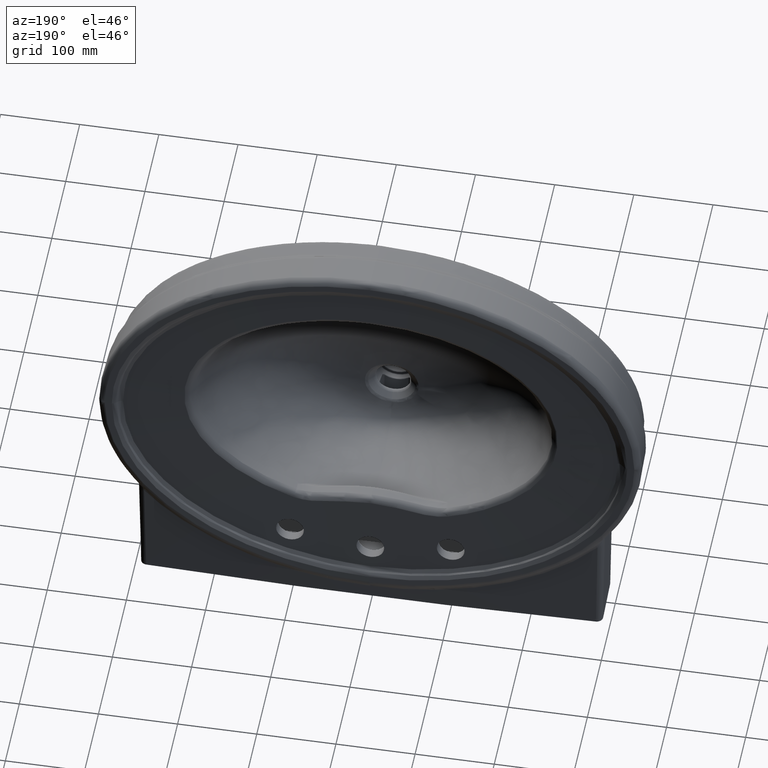
[diagram: clean part render]
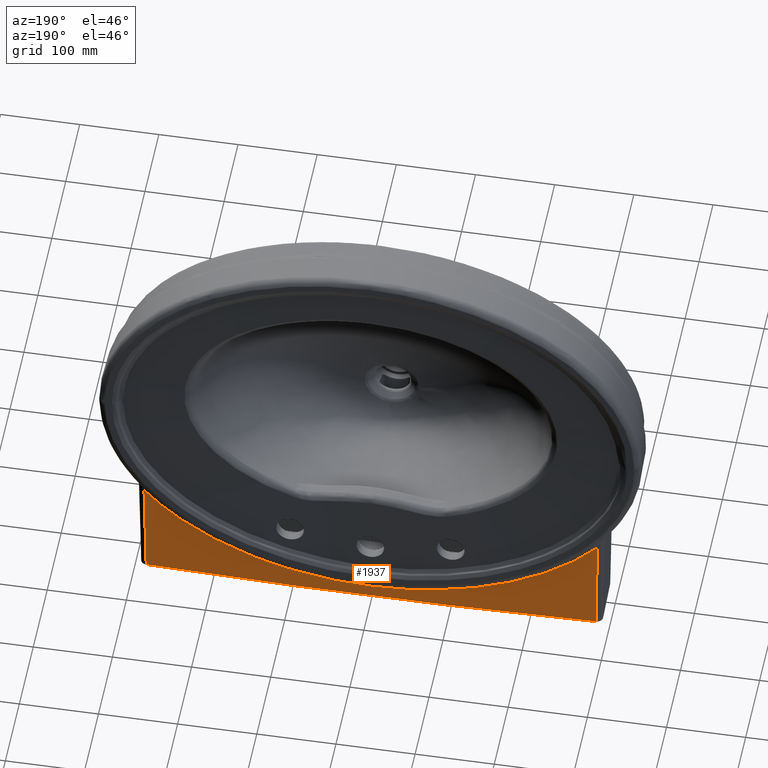
[diagram: same view with one face highlighted and labeled with its STEP entity id]
A machine part, auxiliary view. The second image highlights one B-rep face of the part: STEP entity #1937.
In plain terms, the highlighted conical surface has half-angle 1 deg.
Its self-contained STEP definition (entity closure, byte-faithful):
#112=CONICAL_SURFACE('',#7422,9003.678936487,1.);
#1361=B_SPLINE_CURVE_WITH_KNOTS('',3,(#30782,#30783,#30784,#30785,#30786,
#30787),.UNSPECIFIED.,.F.,.F.,(4,1,1,4),(0.,0.3333333333333,0.6666666666667,
1.),.UNSPECIFIED.);
#1383=B_SPLINE_CURVE_WITH_KNOTS('',3,(#32230,#32231,#32232,#32233,#32234,
#32235,#32236,#32237,#32238,#32239,#32240,#32241,#32242,#32243,#32244,#32245,
#32246,#32247,#32248,#32249,#32250,#32251,#32252,#32253,#32254,#32255,#32256,
#32257,#32258,#32259,#32260,#32261,#32262,#32263,#32264,#32265,#32266,#32267,
#32268,#32269,#32270,#32271,#32272,#32273,#32274,#32275,#32276,#32277,#32278,
#32279,#32280,#32281,#32282,#32283,#32284,#32285,#32286,#32287,#32288,#32289,
#32290,#32291,#32292,#32293,#32294,#32295,#32296,#32297,#32298,#32299,#32300,
#32301,#32302,#32303,#32304,#32305,#32306,#32307,#32308,#32309,#32310),
 .UNSPECIFIED.,.F.,.F.,(4,1,1,1,2,2,1,1,1,2,2,1,1,2,2,1,1,2,2,1,2,2,2,2,
2,2,2,2,2,2,2,2,2,2,1,2,2,1,2,2,2,2,2,2,2,2,4),(0.,0.0312499999999998,0.0468749999999998,
0.0546874999999997,0.0585937499999997,0.0624999999999997,0.0937499999999994,
0.109374999999999,0.117187499999999,0.121093749999999,0.124999999999999,
0.140624999999999,0.148437499999999,0.152343749999998,0.156249999999998,
0.171874999999998,0.179687499999998,0.183593749999998,0.187499999999998,
0.203124999999998,0.210937499999998,0.218749999999998,0.249999999999999,
0.312499999999999,0.343749999999999,0.374999999999999,0.406249999999999,
0.437499999999999,0.468749999999999,0.499999999999999,0.531249999999999,
0.562499999999999,0.593749999999999,0.624999999999999,0.656249999999999,
0.671874999999999,0.687499999999999,0.718749999999999,0.734374999999999,
0.749999999999999,0.78125,0.8125,0.84375,0.875,0.90625,0.9375,1.),
 .UNSPECIFIED.);
#1395=B_SPLINE_CURVE_WITH_KNOTS('',3,(#33192,#33193,#33194,#33195,#33196,
#33197,#33198,#33199,#33200,#33201,#33202,#33203,#33204,#33205,#33206,#33207,
#33208,#33209,#33210,#33211,#33212,#33213,#33214,#33215,#33216),
 .UNSPECIFIED.,.F.,.F.,(4,1,1,1,1,1,1,1,1,1,1,1,1,1,1,1,1,1,1,1,1,1,4),
(0.,0.04545454545455,0.09090909090909,0.1363636363636,0.1818181818182,0.2272727272727,
0.2727272727273,0.3181818181818,0.3636363636364,0.4090909090909,0.4545454545455,
0.5,0.5454545454545,0.5909090909091,0.6363636363636,0.6818181818182,0.7272727272727,
0.7727272727273,0.8181818181818,0.8636363636364,0.9090909090909,0.9545454545455,
1.),.UNSPECIFIED.);
#1396=B_SPLINE_CURVE_WITH_KNOTS('',3,(#33362,#33363,#33364,#33365,#33366,
#33367),.UNSPECIFIED.,.F.,.F.,(4,1,1,4),(0.,0.3333333333333,0.6666666666667,
1.),.UNSPECIFIED.);
#1937=ADVANCED_FACE('',(#2402),#112,.T.);
#2402=FACE_OUTER_BOUND('',#2883,.T.);
#2883=EDGE_LOOP('',(#4672,#4673,#4674,#4675,#4676));
#4672=ORIENTED_EDGE('',*,*,#6764,.T.);
#4673=ORIENTED_EDGE('',*,*,#6784,.T.);
#4674=ORIENTED_EDGE('',*,*,#6533,.T.);
#4675=ORIENTED_EDGE('',*,*,#6732,.T.);
#4676=ORIENTED_EDGE('',*,*,#6782,.T.);
#5675=VERTEX_POINT('',#22751);
#5676=VERTEX_POINT('',#22753);
#5782=VERTEX_POINT('',#30781);
#5801=VERTEX_POINT('',#32184);
#5802=VERTEX_POINT('',#32311);
#6533=EDGE_CURVE('',#5676,#5675,#7172,.T.);
#6732=EDGE_CURVE('',#5675,#5782,#1361,.T.);
#6764=EDGE_CURVE('',#5802,#5801,#1383,.T.);
#6782=EDGE_CURVE('',#5782,#5802,#1395,.T.);
#6784=EDGE_CURVE('',#5801,#5676,#1396,.T.);
#7172=CIRCLE('',#7379,9002.499999999);
#7379=AXIS2_PLACEMENT_3D('',#22752,#7875,#7876);
#7422=AXIS2_PLACEMENT_3D('',#33368,#7978,#7979);
#7875=DIRECTION('',(0.,0.,1.));
#7876=DIRECTION('',(0.0315480222375593,0.999502237262578,0.));
#7978=DIRECTION('',(0.,0.,1.));
#7979=DIRECTION('',(0.,-1.,3.07672800462499E-018));
#22751=CARTESIAN_POINT('',(-284.011070193597,148.205750609383,-225.));
#22752=CARTESIAN_POINT('',(0.,-8849.813140346,-225.));
#22753=CARTESIAN_POINT('',(284.011070193597,148.205750609383,-225.));
#30781=CARTESIAN_POINT('',(-286.4307796233,150.4881171025,-89.91753538059));
#30782=CARTESIAN_POINT('',(-284.0110701936,148.2057506094,-225.));
#30783=CARTESIAN_POINT('',(-284.2799479448,148.4593973235,-209.9898570671));
#30784=CARTESIAN_POINT('',(-284.8176879542,148.9666571756,-179.9702238998));
#30785=CARTESIAN_POINT('',(-285.6242796879,149.7274450549,-134.9427495264));
#30786=CARTESIAN_POINT('',(-286.1619389287,150.2345714545,-104.9257156345));
#30787=CARTESIAN_POINT('',(-286.4307796233,150.4881171025,-89.91753538059));
#32184=CARTESIAN_POINT('',(286.4307777769,150.4881171386,-89.91753667617));
#32230=CARTESIAN_POINT('',(1.64568771235064E-007,152.991527517695,-207.545589773164));
#32231=CARTESIAN_POINT('',(2.31019978619397,152.991532934379,-207.54527944917));
#32232=CARTESIAN_POINT('',(5.77266441608813,152.990674093708,-207.518066812772));
#32233=CARTESIAN_POINT('',(9.80724567559532,152.988166369759,-207.43951122376));
#32234=CARTESIAN_POINT('',(11.8232961164287,152.986537500564,-207.388531550951));
#32235=CARTESIAN_POINT('',(12.6870519806125,152.985759208085,-207.364175574397));
#32236=CARTESIAN_POINT('',(13.2628301672724,152.98522253994,-207.347381024393));
#32237=CARTESIAN_POINT('',(13.4975333624365,152.984998145413,-207.340358849125));
#32238=CARTESIAN_POINT('',(16.566411028924,152.981947371707,-207.244884840463));
#32239=CARTESIAN_POINT('',(20.6653530676527,152.976678715541,-207.079217472747));
#32240=CARTESIAN_POINT('',(25.4598863091773,152.968396299825,-206.818793670451));
#32241=CARTESIAN_POINT('',(27.8602614974928,152.963716919084,-206.671795467647));
#32242=CARTESIAN_POINT('',(28.8896598445333,152.961595690644,-206.605199173233));
#32243=CARTESIAN_POINT('',(29.5760734368658,152.960155758771,-206.560002295925));
#32244=CARTESIAN_POINT('',(29.8678529045131,152.959534764597,-206.540513723179));
#32245=CARTESIAN_POINT('',(31.8421337357049,152.955246602242,-206.40597709264));
#32246=CARTESIAN_POINT('',(34.1980378124753,152.949723600137,-206.23297514798));
#32247=CARTESIAN_POINT('',(36.9234350325874,152.942656339539,-206.01091306685));
#32248=CARTESIAN_POINT('',(38.0865000937919,152.939497706862,-205.911409358003));
#32249=CARTESIAN_POINT('',(38.8607740649501,152.937363533161,-205.844110386437));
#32250=CARTESIAN_POINT('',(39.205097219562,152.936402148096,-205.813768660073));
#32251=CARTESIAN_POINT('',(41.3465807830352,152.930326132424,-205.62175869155));
#32252=CARTESIAN_POINT('',(43.9281344754749,152.922541817783,-205.374603783963));
#32253=CARTESIAN_POINT('',(46.9605506248836,152.912561744964,-205.0569562374));
#32254=CARTESIAN_POINT('',(48.2645725841759,152.908088232598,-204.914542970078));
#32255=CARTESIAN_POINT('',(49.1349016766211,152.905061833897,-204.818205546416));
#32256=CARTESIAN_POINT('',(49.5308131254726,152.903668530102,-204.773855714215));
#32257=CARTESIAN_POINT('',(51.9102597402061,152.895171559982,-204.50345341606));
#32258=CARTESIAN_POINT('',(54.7467171784356,152.884455200396,-204.162888505403));
#32259=CARTESIAN_POINT('',(57.5548570210788,152.873012369921,-203.79820036544));
#32260=CARTESIAN_POINT('',(59.4206574718767,152.865228250938,-203.549714221175));
#32261=CARTESIAN_POINT('',(60.3118826199734,152.861426591986,-203.428179764784));
#32262=CARTESIAN_POINT('',(65.137563355053,152.840362222443,-202.753215943231));
#32263=CARTESIAN_POINT('',(69.033442721647,152.821797356281,-202.154136113339));
#32264=CARTESIAN_POINT('',(80.6778882323526,152.761516709062,-200.204549904933));
#32265=CARTESIAN_POINT('',(88.3211593940764,152.715705889575,-198.706686157443));
#32266=CARTESIAN_POINT('',(99.5831937327312,152.639860092884,-196.184019332649));
#32267=CARTESIAN_POINT('',(103.315034152933,152.613307762589,-195.294911839062));
#32268=CARTESIAN_POINT('',(110.734374625201,152.557827677349,-193.420259747912));
#32269=CARTESIAN_POINT('',(114.45903907321,152.528595396854,-192.424233372744));
#32270=CARTESIAN_POINT('',(121.715371937458,152.469136910872,-190.377670628847));
#32271=CARTESIAN_POINT('',(125.319423094169,152.4383411404,-189.307959304029));
#32272=CARTESIAN_POINT('',(132.479296980868,152.374790260484,-187.075676748654));
#32273=CARTESIAN_POINT('',(136.081064010806,152.341597407309,-185.897377523071));
#32274=CARTESIAN_POINT('',(143.052594793133,152.275174719696,-183.510831146272));
#32275=CARTESIAN_POINT('',(146.51198976813,152.241121116134,-182.273248868774));
#32276=CARTESIAN_POINT('',(153.378041430884,152.171511732813,-179.709466135584));
#32277=CARTESIAN_POINT('',(156.833457480348,152.135433535516,-178.363496609412));
#32278=CARTESIAN_POINT('',(163.496516598027,152.064044190418,-175.662015660786));
#32279=CARTESIAN_POINT('',(166.798117833953,152.027754239554,-174.269938280235));
#32280=CARTESIAN_POINT('',(173.341466595054,151.954181299992,-171.403109706657));
#32281=CARTESIAN_POINT('',(176.632752211229,151.916317108138,-169.90497486914));
#32282=CARTESIAN_POINT('',(182.957320494222,151.842114430161,-166.919565959588));
#32283=CARTESIAN_POINT('',(186.088050636894,151.804656073018,-165.38796654849));
#32284=CARTESIAN_POINT('',(192.286406126862,151.729222803284,-162.246977813652));
#32285=CARTESIAN_POINT('',(195.403773525592,151.6906230757,-160.610583540959));
#32286=CARTESIAN_POINT('',(201.376438677098,151.615599819037,-157.36802487874));
#32287=CARTESIAN_POINT('',(205.804991153568,151.559163722382,-154.882406978895));
#32288=CARTESIAN_POINT('',(210.157127855791,151.502700135896,-152.316240724281));
#32289=CARTESIAN_POINT('',(213.041571477179,151.465076149524,-150.587563586812));
#32290=CARTESIAN_POINT('',(214.499614377129,151.445953013362,-149.69922613688));
#32291=CARTESIAN_POINT('',(218.702403384787,151.390570005666,-147.097658719497));
#32292=CARTESIAN_POINT('',(222.85251670442,151.335357326015,-144.446320380574));
#32293=CARTESIAN_POINT('',(226.923620355126,151.280618635039,-141.720325659339));
#32294=CARTESIAN_POINT('',(229.620132188714,151.244255204222,-139.886405538003));
#32295=CARTESIAN_POINT('',(230.983075066855,151.22581989588,-138.944688060554));
#32296=CARTESIAN_POINT('',(234.904774886904,151.172651659851,-136.193423746582));
#32297=CARTESIAN_POINT('',(237.482620779265,151.1375384579,-134.329114996126));
#32298=CARTESIAN_POINT('',(242.565074631911,151.0681653839,-130.540232412932));
#32299=CARTESIAN_POINT('',(245.113440283657,151.03330727184,-128.581001465332));
#32300=CARTESIAN_POINT('',(249.961906288415,150.967020723778,-124.740902947294));
#32301=CARTESIAN_POINT('',(252.349027080819,150.934402282143,-122.793173308752));
#32302=CARTESIAN_POINT('',(257.049047458807,150.870392207765,-118.84235327262));
#32303=CARTESIAN_POINT('',(259.401808863615,150.838462979256,-116.803692723299));
#32304=CARTESIAN_POINT('',(263.873666380773,150.778153347442,-112.813291472537));
#32305=CARTESIAN_POINT('',(266.071858533376,150.74870005129,-110.793040284376));
#32306=CARTESIAN_POINT('',(270.392772588627,150.691362376632,-106.702436782495));
#32307=CARTESIAN_POINT('',(272.552042573179,150.663004363342,-104.595353827537));
#32308=CARTESIAN_POINT('',(278.69736300907,150.583365779709,-98.4193371217554));
#32309=CARTESIAN_POINT('',(282.640791259988,150.533717083217,-94.2129554830586));
#32310=CARTESIAN_POINT('',(286.43077777693,150.488117139536,-89.9175366761863));
#32311=CARTESIAN_POINT('',(1.645687259551E-007,152.9915275656,-207.545589774));
#33192=CARTESIAN_POINT('',(-286.4307796233,150.4881171025,-89.91753538059));
#33193=CARTESIAN_POINT('',(-283.8556210978,150.5191003486,-92.83613620194));
#33194=CARTESIAN_POINT('',(-278.5331138844,150.5851752673,-98.62558998324));
#33195=CARTESIAN_POINT('',(-270.0152216904,150.6958634199,-107.1606633421));
#33196=CARTESIAN_POINT('',(-260.9651781068,150.8170337636,-115.5189425399));
#33197=CARTESIAN_POINT('',(-251.3807684773,150.9475292574,-123.6783571397));
#33198=CARTESIAN_POINT('',(-241.2597007595,151.0860906016,-131.6168285173));
#33199=CARTESIAN_POINT('',(-230.5955487205,151.231402678,-139.315331367));
#33200=CARTESIAN_POINT('',(-219.3946779431,151.3818665683,-146.745614481));
#33201=CARTESIAN_POINT('',(-207.6683445946,151.5357468376,-153.8776367143));
#33202=CARTESIAN_POINT('',(-195.4160099849,151.6913795009,-160.6895851476));
#33203=CARTESIAN_POINT('',(-182.6588533871,151.8467538293,-167.1484048939));
#33204=CARTESIAN_POINT('',(-169.4166961447,151.9998825331,-173.2241676807));
#33205=CARTESIAN_POINT('',(-155.6924787471,152.1489283825,-178.89612304));
#33206=CARTESIAN_POINT('',(-141.52659315,152.2916516405,-184.1291218091));
#33207=CARTESIAN_POINT('',(-126.9470205742,152.4260547226,-188.8965188709));
#33208=CARTESIAN_POINT('',(-111.9658338399,152.5503093215,-193.1783585231));
#33209=CARTESIAN_POINT('',(-96.64584916144,152.6622830215,-196.9424802828));
#33210=CARTESIAN_POINT('',(-81.02696799905,152.760282829,-200.1673911234));
#33211=CARTESIAN_POINT('',(-65.1381815172,152.84281464,-202.8365307268));
#33212=CARTESIAN_POINT('',(-49.05061771076,152.9084138965,-204.929161082));
#33213=CARTESIAN_POINT('',(-32.80911060475,152.9560806925,-206.4335795292));
#33214=CARTESIAN_POINT('',(-16.44433608744,152.9850483183,-207.341570708));
#33215=CARTESIAN_POINT('',(-5.490858815502,152.9915431981,-207.5449638968));
#33216=CARTESIAN_POINT('',(1.645687259551E-007,152.9915275656,-207.545589774));
#33362=CARTESIAN_POINT('',(286.4307777769,150.4881171386,-89.91753667617));
#33363=CARTESIAN_POINT('',(286.1619370853,150.2345714933,-104.9257167615));
#33364=CARTESIAN_POINT('',(285.6242804997,149.727444991,-134.942751706));
#33365=CARTESIAN_POINT('',(284.8176876988,148.9666571717,-179.9702245874));
#33366=CARTESIAN_POINT('',(284.2799479398,148.4593973188,-209.9898573451));
#33367=CARTESIAN_POINT('',(284.0110701936,148.2057506094,-225.));
#33368=CARTESIAN_POINT('',(0.,-8849.813140346,-157.458773889));